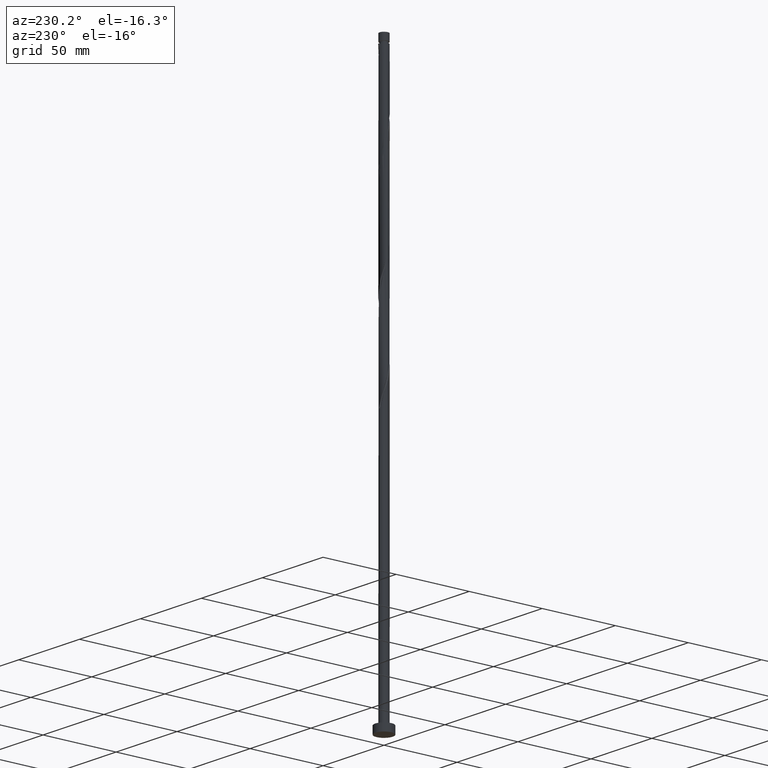
[diagram: clean part render]
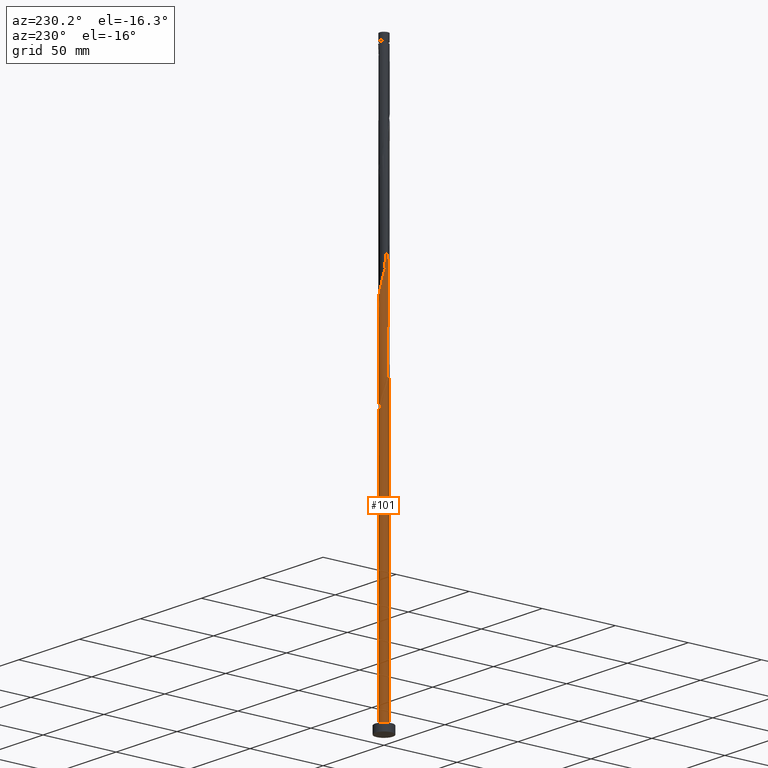
[diagram: same view with one face highlighted and labeled with its STEP entity id]
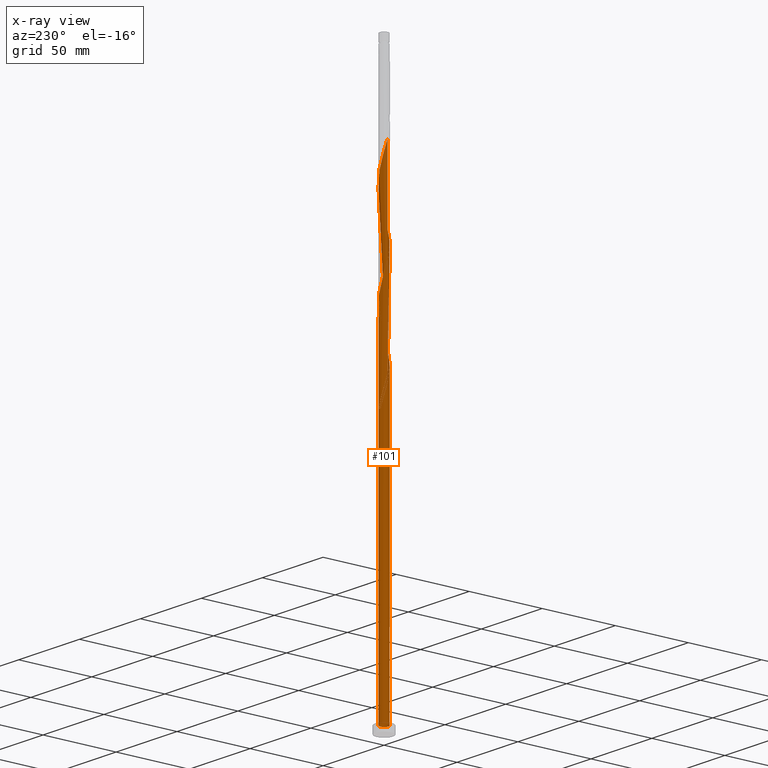
[diagram: x-ray of the same camera — body ghosted, the highlighted face saturated]
A machine part, auxiliary view. The second image highlights one B-rep face of the part: STEP entity #101.
The next image is the same camera in x-ray: the body ghosted, the highlighted face saturated — about 0% of this face is hidden behind the body in this view.
In plain terms, the highlighted cylindrical surface (bore or boss wall) has radius 3 mm, axis along (-0, -0, -1).
Its self-contained STEP definition (entity closure, byte-faithful):
#8 = CARTESIAN_POINT ( 'NONE',  ( 2.861491667719901599, 0.9010357570982416853, 296.0616467477937590 ) ) ;
#21 = CARTESIAN_POINT ( 'NONE',  ( -0.3426132633519636261, -2.997004880578672648, 208.2838689700159307 ) ) ;
#25 = EDGE_CURVE ( 'NONE', #1566, #482, #1890, .T. ) ;
#28 = CARTESIAN_POINT ( 'NONE',  ( -1.741185482790980732, 2.443004935426444924, 182.7283134144604162 ) ) ;
#41 = CARTESIAN_POINT ( 'NONE',  ( -2.611625341554442148, -1.476283534877588677, 198.2838689700160160 ) ) ;
#57 = CARTESIAN_POINT ( 'NONE',  ( -0.9582386936374924780, -2.860279830445437543, 206.0616467477937590 ) ) ;
#68 = CARTESIAN_POINT ( 'NONE',  ( -0.9059989139450645990, 2.877253563794374802, 246.0616467477937306 ) ) ;
#77 = CARTESIAN_POINT ( 'NONE',  ( 2.944774136347770632, -0.6540087066196521581, 290.5060911922382161 ) ) ;
#85 = CARTESIAN_POINT ( 'NONE',  ( 2.861491667719901599, 0.9010357570982416853, 229.3949800811271587 ) ) ;
#91 = CARTESIAN_POINT ( 'NONE',  ( -2.980586974261067557, 0.3407363920471041530, 258.2838689700159875 ) ) ;
#100 = CARTESIAN_POINT ( 'NONE',  ( -2.744447700168709758, 1.251970017003502411, 254.9505356366825595 ) ) ;
#101 = ADVANCED_FACE ( 'NONE', ( #450 ), #319, .T. ) ;
#107 = CARTESIAN_POINT ( 'NONE',  ( 0.3426132633519640147, 2.997004880578673092, 308.2838689700159875 ) ) ;
#114 = CARTESIAN_POINT ( 'NONE',  ( -1.245111594254569631, 2.729413328510879921, 184.9505356366826163 ) ) ;
#121 = CARTESIAN_POINT ( 'NONE',  ( -3.000000000000007994, 0.1709212123392705174, 325.5528344171101480 ) ) ;
#128 = CARTESIAN_POINT ( 'NONE',  ( -2.424175730171096887, 1.795214230025625302, 319.3949800811270734 ) ) ;
#134 = CARTESIAN_POINT ( 'NONE',  ( -2.944774136347770632, 0.6540087066196506038, 323.8394245255714168 ) ) ;
#143 = CARTESIAN_POINT ( 'NONE',  ( 0.000000000000000000, 0.000000000000000000, 178.2838689700159591 ) ) ;
#155 = CARTESIAN_POINT ( 'NONE',  ( 2.944774136347770632, -0.6540087066196521581, 223.8394245255715305 ) ) ;
#162 = CARTESIAN_POINT ( 'NONE',  ( -1.195207115623887928, 2.751632233922631787, 180.5060911922382445 ) ) ;
#167 = CARTESIAN_POINT ( 'NONE',  ( 1.195207115623887484, -2.751632233922632675, 213.8394245255715589 ) ) ;
#193 = CARTESIAN_POINT ( 'NONE',  ( -3.016399812174364481, 0.02746407747455833007, 259.3949800811271302 ) ) ;
#202 = ORIENTED_EDGE ( 'NONE', *, *, #1786, .T. ) ;
#206 = CARTESIAN_POINT ( 'NONE',  ( 0.02731362638454012601, 2.999875658392153088, 242.7283134144603878 ) ) ;
#217 = CARTESIAN_POINT ( 'NONE',  ( -1.741185482790980732, 2.443004935426444924, 249.3949800811271302 ) ) ;
#225 = DIRECTION ( 'NONE',  ( -0.000000000000000000, -0.000000000000000000, -1.000000000000000000 ) ) ;
#227 = CARTESIAN_POINT ( 'NONE',  ( -2.038775222402706255, -2.223244857174725198, 268.2838689700158739 ) ) ;
#238 = CARTESIAN_POINT ( 'NONE',  ( 1.997955648279249319, -2.259998966802001075, 283.8394245255715305 ) ) ;
#246 = CARTESIAN_POINT ( 'NONE',  ( -0.6504259784947257206, 2.928642355512050877, 182.7283134144603594 ) ) ;
#253 = CARTESIAN_POINT ( 'NONE',  ( -2.861491667719896270, 0.9010357570982424624, 193.8394245255715020 ) ) ;
#263 = CARTESIAN_POINT ( 'NONE',  ( -0.5969924622639748435, 2.940000000000004388, 311.6172023033493019 ) ) ;
#270 = DIRECTION ( 'NONE',  ( -0.000000000000000000, -0.000000000000000000, -1.000000000000000000 ) ) ;
#280 = CARTESIAN_POINT ( 'NONE',  ( -1.997955648279249763, 2.259998966801999742, 317.1727578589047880 ) ) ;
#304 = CARTESIAN_POINT ( 'NONE',  ( -2.211065689225174768, 2.027606598413812744, 184.9505356366826732 ) ) ;
#311 = CARTESIAN_POINT ( 'NONE',  ( 2.744447700168709758, -1.251970017003502855, 221.6172023033492451 ) ) ;
#319 = CYLINDRICAL_SURFACE ( 'NONE', #1416, 3.000000000000000444 ) ;
#321 = CARTESIAN_POINT ( 'NONE',  ( -0.02731362638453969927, -2.999875658392153088, 209.3949800811270734 ) ) ;
#340 = CARTESIAN_POINT ( 'NONE',  ( -2.038775222402706255, -2.223244857174725198, 201.6172023033492167 ) ) ;
#344 = VERTEX_POINT ( 'NONE', #937 ) ;
#346 = CARTESIAN_POINT ( 'NONE',  ( -2.956194341916742019, -0.6002808636434373568, 194.9505356366826163 ) ) ;
#357 = CARTESIAN_POINT ( 'NONE',  ( 2.424175730171095999, -1.795214230025625746, 286.0616467477937590 ) ) ;
#366 = CARTESIAN_POINT ( 'NONE',  ( -2.986297077045553916, -0.2864083930844391057, 260.5060911922382729 ) ) ;
#372 = CARTESIAN_POINT ( 'NONE',  ( -2.611625341554442148, -1.476283534877588677, 264.9505356366826163 ) ) ;
#380 = CARTESIAN_POINT ( 'NONE',  ( 0.5969924622639753986, -2.940000000000004388, 278.2838689700159875 ) ) ;
#388 = CARTESIAN_POINT ( 'NONE',  ( -2.956194341916742019, -0.6002808636434373568, 261.6172023033492451 ) ) ;
#406 = CARTESIAN_POINT ( 'NONE',  ( -2.456461689585819119, 1.750776419202128231, 190.5060911922382161 ) ) ;
#415 = CARTESIAN_POINT ( 'NONE',  ( -1.484415317302710591, 2.626010904050887440, 181.6172023033492735 ) ) ;
#420 = AXIS2_PLACEMENT_3D ( 'NONE', #596, #1858, #541 ) ;
#424 = ORIENTED_EDGE ( 'NONE', *, *, #1463, .F. ) ;
#428 = CARTESIAN_POINT ( 'NONE',  ( -2.944774136347770632, 0.6540087066196506038, 190.5060911922381877 ) ) ;
#436 = CARTESIAN_POINT ( 'NONE',  ( -2.211065689225174768, 2.027606598413812744, 318.2838689700159875 ) ) ;
#450 = FACE_OUTER_BOUND ( 'NONE', #639, .T. ) ;
#464 = CARTESIAN_POINT ( 'NONE',  ( -1.531984494871653890, -2.598546826576329849, 203.8394245255714736 ) ) ;
#474 = EDGE_CURVE ( 'NONE', #482, #604, #554, .T. ) ;
#482 = VERTEX_POINT ( 'NONE', #675 ) ;
#501 = ORIENTED_EDGE ( 'NONE', *, *, #474, .F. ) ;
#503 =( BOUNDED_CURVE ( )  B_SPLINE_CURVE ( 2, ( #1437, #823, #1271, #1143, #253, #1736, #1719, #406, #1007, #993, #1575, #842, #114, #1873, #246, #833, #697, #1297, #1886 ),
 .UNSPECIFIED., .F., .T. ) 
 B_SPLINE_CURVE_WITH_KNOTS ( ( 3, 2, 2, 2, 2, 2, 2, 2, 2, 3 ),
 ( 0.9295286012773112949, 0.9333333333333333481, 0.9416666666666666519, 0.9499999999999999556, 0.9583333333333333703, 0.9666666666666666741, 0.9749999999999999778, 0.9833333333333332815, 0.9916666666666666963, 1.000000000000000000 ),
 .UNSPECIFIED. ) 
 CURVE ( )  GEOMETRIC_REPRESENTATION_ITEM ( )  RATIONAL_B_SPLINE_CURVE ( ( 0.9066196499552428012, 0.9068171577856554144, 0.9090909090909544688, 0.9041108139712026315, 0.9090909090909544688, 0.9041108139712026315, 0.9090909090909544688, 0.9041108139712026315, 0.9090909090909544688, 0.9041108139712026315, 0.9090909090909544688, 0.9041108139712026315, 0.9090909090909544688, 0.9041108139712026315, 0.9090909090909544688, 0.9041108139712026315, 0.9090909090909544688, 0.9041108139712026315, 0.9090909090909544688 ) ) 
 REPRESENTATION_ITEM ( '' )  );
#504 = CARTESIAN_POINT ( 'NONE',  ( -0.5969924622639748435, 2.940000000000004388, 244.9505356366826732 ) ) ;
#513 = CARTESIAN_POINT ( 'NONE',  ( 0.3426132633519640147, 2.997004880578673092, 241.6172023033493019 ) ) ;
#522 = CARTESIAN_POINT ( 'NONE',  ( 0.000000000000000000, 0.000000000000000000, 384.1999999999999886 ) ) ;
#526 = CARTESIAN_POINT ( 'NONE',  ( -2.584311715169903767, 1.523592123514564189, 253.8394245255715020 ) ) ;
#534 = CARTESIAN_POINT ( 'NONE',  ( -0.02731362638453969927, -2.999875658392153088, 276.0616467477937022 ) ) ;
#539 = LINE ( 'NONE', #1569, #822 ) ;
#541 = DIRECTION ( 'NONE',  ( 1.000000000000000000, 0.000000000000000000, 0.000000000000000000 ) ) ;
#542 = VERTEX_POINT ( 'NONE', #1563 ) ;
#545 = CARTESIAN_POINT ( 'NONE',  ( 2.247618455994266462, 1.987010638188426048, 233.8394245255716157 ) ) ;
#554 = LINE ( 'NONE', #1880, #919 ) ;
#556 = CIRCLE ( 'NONE', #420, 3.000000000000000444 ) ;
#578 = CARTESIAN_POINT ( 'NONE',  ( -2.844610918258240861, 0.9529893618115767850, 322.7283134144603878 ) ) ;
#587 = CARTESIAN_POINT ( 'NONE',  ( 0.9582386936374928110, 2.860279830445437099, 306.0616467477937590 ) ) ;
#588 = CARTESIAN_POINT ( 'NONE',  ( -2.844610918258240861, 0.9529893618115767850, 189.3949800811271302 ) ) ;
#596 = CARTESIAN_POINT ( 'NONE',  ( 0.000000000000000000, 0.000000000000000000, 5.000000000000000000 ) ) ;
#604 = VERTEX_POINT ( 'NONE', #1128 ) ;
#615 = AXIS2_PLACEMENT_3D ( 'NONE', #634, #1526, #917 ) ;
#634 = CARTESIAN_POINT ( 'NONE',  ( 0.000000000000000000, 0.000000000000000000, 5.000000000000000000 ) ) ;
#639 = EDGE_LOOP ( 'NONE', ( #1388, #424, #658, #1754, #1191, #501, #1480, #202, #1102 ) ) ;
#642 = CARTESIAN_POINT ( 'NONE',  ( 0.5969924622639753986, -2.940000000000004388, 211.6172023033493304 ) ) ;
#644 = EDGE_CURVE ( 'NONE', #1239, #542, #503, .T. ) ;
#651 = CARTESIAN_POINT ( 'NONE',  ( -0.3426132633519636261, -2.997004880578672648, 274.9505356366825595 ) ) ;
#658 = ORIENTED_EDGE ( 'NONE', *, *, #474, .T. ) ;
#661 = CARTESIAN_POINT ( 'NONE',  ( 2.980586974261067557, -0.3407363920471044305, 291.6172023033493588 ) ) ;
#670 = CARTESIAN_POINT ( 'NONE',  ( 1.531984494871654556, 2.598546826576328517, 237.1727578589048164 ) ) ;
#675 = CARTESIAN_POINT ( 'NONE',  ( -3.000000000000004441, -3.976278501896848656E-15, 192.8250923931611567 ) ) ;
#678 = CARTESIAN_POINT ( 'NONE',  ( -2.944774136347770632, 0.6540087066196506038, 257.1727578589047880 ) ) ;
#689 = CARTESIAN_POINT ( 'NONE',  ( 2.211065689225174324, -2.027606598413812744, 284.9505356366827300 ) ) ;
#697 = CARTESIAN_POINT ( 'NONE',  ( -0.02731362638453790903, 2.999875658392149091, 180.5060911922381592 ) ) ;
#698 = CARTESIAN_POINT ( 'NONE',  ( -2.980586974261067557, 0.3407363920471041530, 324.9505356366826732 ) ) ;
#711 = CARTESIAN_POINT ( 'NONE',  ( -1.195207115623887928, 2.751632233922631787, 313.8394245255715873 ) ) ;
#731 = CARTESIAN_POINT ( 'NONE',  ( -3.000000000000005329, 0.1709212123392879756, 192.2195010837765210 ) ) ;
#738 = DIRECTION ( 'NONE',  ( 0.000000000000000000, -0.000000000000000000, -1.000000000000000000 ) ) ;
#750 = CARTESIAN_POINT ( 'NONE',  ( -1.245111594254573184, -2.729413328510884806, 204.9505356366826163 ) ) ;
#754 = EDGE_CURVE ( 'NONE', #604, #1375, #556, .T. ) ;
#771 = CARTESIAN_POINT ( 'NONE',  ( -2.424175730171096887, 1.795214230025625302, 186.0616467477936737 ) ) ;
#773 = CARTESIAN_POINT ( 'NONE',  ( -3.000000000000003997, -3.976278501896848656E-15, 192.8250923931611567 ) ) ;
#783 = CARTESIAN_POINT ( 'NONE',  ( -1.785379858637180517, -2.410895841875527523, 202.7283134144604730 ) ) ;
#791 = CARTESIAN_POINT ( 'NONE',  ( -1.245111594254573184, -2.729413328510884806, 271.6172023033492451 ) ) ;
#800 = CARTESIAN_POINT ( 'NONE',  ( -1.484415317302710591, 2.626010904050887440, 248.2838689700159307 ) ) ;
#809 = CARTESIAN_POINT ( 'NONE',  ( -2.424175730171096887, 1.795214230025625302, 252.7283134144603878 ) ) ;
#817 = CARTESIAN_POINT ( 'NONE',  ( -0.9582386936374924780, -2.860279830445437543, 272.7283134144603309 ) ) ;
#822 = VECTOR ( 'NONE', #1320, 1000.000000000000000 ) ;
#823 = CARTESIAN_POINT ( 'NONE',  ( -3.000000000000000444, 0.1435319978602440649, 196.5674303546401234 ) ) ;
#825 = CARTESIAN_POINT ( 'NONE',  ( 2.986297077045553916, 0.2864083930844375514, 227.1727578589048449 ) ) ;
#833 = CARTESIAN_POINT ( 'NONE',  ( -0.3426132633519624049, 2.997004880578669539, 181.6172023033493588 ) ) ;
#842 = CARTESIAN_POINT ( 'NONE',  ( -1.531984494871650337, 2.598546826576326296, 186.0616467477937022 ) ) ;
#844 = CARTESIAN_POINT ( 'NONE',  ( 2.038775222402706699, 2.223244857174724753, 301.6172023033493019 ) ) ;
#855 = CARTESIAN_POINT ( 'NONE',  ( -1.484415317302710591, 2.626010904050887440, 314.9505356366825595 ) ) ;
#899 = CARTESIAN_POINT ( 'NONE',  ( 2.844610918258240861, -0.9529893618115777842, 222.7283134144603878 ) ) ;
#909 = CARTESIAN_POINT ( 'NONE',  ( 1.741185482790979844, -2.443004935426445368, 216.0616467477937874 ) ) ;
#917 = DIRECTION ( 'NONE',  ( 1.000000000000000000, 0.000000000000000000, 0.000000000000000000 ) ) ;
#919 = VECTOR ( 'NONE', #270, 1000.000000000000000 ) ;
#920 = CIRCLE ( 'NONE', #957, 3.000000000000000444 ) ;
#937 = CARTESIAN_POINT ( 'NONE',  ( -3.000000000000004441, -1.719067773376456763E-15, 326.1584257264944995 ) ) ;
#949 = CARTESIAN_POINT ( 'NONE',  ( 2.844610918258240861, -0.9529893618115777842, 289.3949800811270734 ) ) ;
#957 = AXIS2_PLACEMENT_3D ( 'NONE', #143, #738, #1511 ) ;
#962 = CARTESIAN_POINT ( 'NONE',  ( -2.247618455994265130, -1.987010638188427381, 267.1727578589049017 ) ) ;
#964 = EDGE_CURVE ( 'NONE', #344, #1239, #539, .T. ) ;
#973 = CARTESIAN_POINT ( 'NONE',  ( -2.456461689585823560, -1.750776419202129786, 266.0616467477937590 ) ) ;
#983 = CARTESIAN_POINT ( 'NONE',  ( 1.195207115623887484, -2.751632233922632675, 280.5060911922381592 ) ) ;
#993 = CARTESIAN_POINT ( 'NONE',  ( -2.038775222402703147, 2.223244857174722089, 188.2838689700160160 ) ) ;
#995 = CARTESIAN_POINT ( 'NONE',  ( -2.844610918258240861, 0.9529893618115767850, 256.0616467477937590 ) ) ;
#1002 = CARTESIAN_POINT ( 'NONE',  ( -0.2879860105828838668, 3.002746436205631753, 310.5060911922381024 ) ) ;
#1007 = CARTESIAN_POINT ( 'NONE',  ( -2.247618455994259801, 1.987010638188424938, 189.3949800811270450 ) ) ;
#1013 = CARTESIAN_POINT ( 'NONE',  ( 2.456461689585824448, 1.750776419202128231, 299.3949800811270165 ) ) ;
#1025 = CARTESIAN_POINT ( 'NONE',  ( -2.980586974261067557, 0.3407363920471041530, 191.6172023033493304 ) ) ;
#1058 = CARTESIAN_POINT ( 'NONE',  ( -2.584311715169903767, 1.523592123514564189, 187.1727578589048449 ) ) ;
#1060 = CARTESIAN_POINT ( 'NONE',  ( 2.211065689225174324, -2.027606598413812744, 218.2838689700160160 ) ) ;
#1096 = CARTESIAN_POINT ( 'NONE',  ( 1.484415317302710591, -2.626010904050887884, 281.6172023033492451 ) ) ;
#1102 = ORIENTED_EDGE ( 'NONE', *, *, #644, .F. ) ;
#1105 = CARTESIAN_POINT ( 'NONE',  ( 2.744447700168709758, -1.251970017003502855, 288.2838689700159307 ) ) ;
#1112 = CARTESIAN_POINT ( 'NONE',  ( -2.861491667719901599, -0.9010357570982425734, 262.7283134144604446 ) ) ;
#1121 = CARTESIAN_POINT ( 'NONE',  ( 0.2879860105828854766, -3.002746436205631753, 277.1727578589049017 ) ) ;
#1128 = CARTESIAN_POINT ( 'NONE',  ( -3.000000000000000444, 0.000000000000000000, 5.000000000000000000 ) ) ;
#1130 = CARTESIAN_POINT ( 'NONE',  ( 1.245111594254573628, 2.729413328510884806, 238.2838689700159875 ) ) ;
#1143 = CARTESIAN_POINT ( 'NONE',  ( -2.956194341916737578, 0.6002808636434372458, 194.9505356366827016 ) ) ;
#1182 = CARTESIAN_POINT ( 'NONE',  ( 3.000000000000000444, 0.000000000000000000, 5.000000000000000000 ) ) ;
#1191 = ORIENTED_EDGE ( 'NONE', *, *, #1351, .T. ) ;
#1193 = CARTESIAN_POINT ( 'NONE',  ( -3.000000000000003553, -0.1435319978602587199, 193.3336409187252229 ) ) ;
#1214 = CARTESIAN_POINT ( 'NONE',  ( -2.456461689585823560, -1.750776419202129786, 199.3949800811270450 ) ) ;
#1221 = CARTESIAN_POINT ( 'NONE',  ( 1.997955648279249319, -2.259998966802001075, 217.1727578589047880 ) ) ;
#1231 = CARTESIAN_POINT ( 'NONE',  ( 0.9059989139450634887, -2.877253563794376134, 279.3949800811269597 ) ) ;
#1239 = VERTEX_POINT ( 'NONE', #1427 ) ;
#1242 = CARTESIAN_POINT ( 'NONE',  ( 3.016399812174364481, -0.02746407747455939172, 292.7283134144603878 ) ) ;
#1252 = CARTESIAN_POINT ( 'NONE',  ( -2.211065689225174768, 2.027606598413812744, 251.6172023033493304 ) ) ;
#1262 = CARTESIAN_POINT ( 'NONE',  ( -1.531984494871653890, -2.598546826576329849, 270.5060911922381024 ) ) ;
#1271 = CARTESIAN_POINT ( 'NONE',  ( -2.986297077045548143, 0.2864083930844402714, 196.0616467477937590 ) ) ;
#1273 = CARTESIAN_POINT ( 'NONE',  ( 2.956194341916742019, 0.6002808636434369127, 228.2838689700159591 ) ) ;
#1278 = CARTESIAN_POINT ( 'NONE',  ( -0.9059989139450645990, 2.877253563794374802, 312.7283134144603878 ) ) ;
#1289 = CARTESIAN_POINT ( 'NONE',  ( 1.531984494871654556, 2.598546826576328517, 303.8394245255714168 ) ) ;
#1297 = CARTESIAN_POINT ( 'NONE',  ( 0.2879860105828864758, 3.002746436205626868, 179.3949800811270450 ) ) ;
#1298 = CARTESIAN_POINT ( 'NONE',  ( 2.611625341554442148, 1.476283534877588677, 298.2838689700159875 ) ) ;
#1306 = CARTESIAN_POINT ( 'NONE',  ( 2.766788993523062068, 1.201790650553046236, 297.1727578589047312 ) ) ;
#1312 = CARTESIAN_POINT ( 'NONE',  ( -0.9059989139450645990, 2.877253563794374802, 179.3949800811270734 ) ) ;
#1320 = DIRECTION ( 'NONE',  ( -0.000000000000000000, -0.000000000000000000, -1.000000000000000000 ) ) ;
#1328 = CARTESIAN_POINT ( 'NONE',  ( -0.6504259784947283851, -2.928642355512055317, 207.1727578589049017 ) ) ;
#1347 = CARTESIAN_POINT ( 'NONE',  ( 2.584311715169903323, -1.523592123514564856, 220.5060911922382161 ) ) ;
#1351 = EDGE_CURVE ( 'NONE', #1375, #604, #1445, .T. ) ;
#1357 = CARTESIAN_POINT ( 'NONE',  ( -2.861491667719901599, -0.9010357570982425734, 196.0616467477937306 ) ) ;
#1375 = VERTEX_POINT ( 'NONE', #1182 ) ;
#1378 = CARTESIAN_POINT ( 'NONE',  ( 0.9582386936374928110, 2.860279830445437099, 239.3949800811270165 ) ) ;
#1388 = ORIENTED_EDGE ( 'NONE', *, *, #964, .F. ) ;
#1391 = CARTESIAN_POINT ( 'NONE',  ( 2.584311715169903323, -1.523592123514564856, 287.1727578589048449 ) ) ;
#1402 = CARTESIAN_POINT ( 'NONE',  ( -2.766788993523060292, -1.201790650553047568, 263.8394245255714736 ) ) ;
#1411 = CARTESIAN_POINT ( 'NONE',  ( 2.611625341554442148, 1.476283534877588677, 231.6172023033492735 ) ) ;
#1416 = AXIS2_PLACEMENT_3D ( 'NONE', #522, #225, #1841 ) ;
#1417 =( BOUNDED_CURVE ( )  B_SPLINE_CURVE ( 2, ( #773, #1193, #1494, #346, #1357, #1533, #41, #1214, #1810, #340, #783, #464, #750, #57, #1328, #21, #321, #1780, #642, #1790, #167, #1664, #909, #1221, #1060, #1632, #1347, #311, #899, #155, #1542, #1835, #825, #1273, #85, #1705, #1411, #1423, #545, #1853, #1843, #670, #1130, #1378, #1860, #513, #206, #1721, #504, #68, #1557, #800, #217, #1827, #1252, #809, #526, #100, #995, #678, #91, #193, #366, #388, #1112, #1402, #372, #973, #962, #227, #1713, #1262, #791, #817, #1684, #651, #534, #1121, #380, #1231, #983, #1096, #1565, #238, #689, #357, #1391, #1105, #949, #77, #661, #1242, #1692, #1550, #8, #1306, #1298, #1013, #1431, #844, #1591, #1289, #1582, #587, #1874, #107, #1598, #1002, #263, #1278, #711, #855, #1448, #280, #436, #128, #1456, #1895, #578, #134, #698, #121, #1888 ),
 .UNSPECIFIED., .F., .T. ) 
 B_SPLINE_CURVE_WITH_KNOTS ( ( 3, 2, 2, 2, 2, 2, 2, 2, 2, 2, 2, 2, 2, 2, 2, 2, 2, 2, 2, 2, 2, 2, 2, 2, 2, 2, 2, 2, 2, 2, 2, 2, 2, 2, 2, 2, 2, 2, 2, 2, 2, 2, 2, 2, 2, 2, 2, 2, 2, 2, 2, 2, 2, 2, 2, 2, 2, 2, 2, 2, 2, 3 ),
 ( 0.05452860127731171819, 0.05833333333333334814, 0.06666666666666665186, 0.07499999999999995559, 0.08333333333333337034, 0.09166666666666667407, 0.09999999999999997780, 0.1083333333333332815, 0.1166666666666666963, 0.1250000000000000000, 0.1333333333333333037, 0.1416666666666667185, 0.1500000000000000222, 0.1583333333333333259, 0.1666666666666666297, 0.1750000000000000444, 0.1833333333333333481, 0.1916666666666666519, 0.1999999999999999556, 0.2083333333333333703, 0.2166666666666666741, 0.2249999999999999778, 0.2333333333333332815, 0.2416666666666666963, 0.2500000000000000000, 0.2583333333333333037, 0.2666666666666667185, 0.2750000000000000222, 0.2833333333333333259, 0.2916666666666666297, 0.3000000000000000444, 0.3083333333333333481, 0.3166666666666666519, 0.3249999999999999556, 0.3333333333333333703, 0.3416666666666666741, 0.3499999999999999778, 0.3583333333333332815, 0.3666666666666666963, 0.3750000000000000000, 0.3833333333333333037, 0.3916666666666667185, 0.4000000000000000222, 0.4083333333333333259, 0.4166666666666666297, 0.4250000000000000444, 0.4333333333333333481, 0.4416666666666666519, 0.4499999999999999556, 0.4583333333333333703, 0.4666666666666666741, 0.4749999999999999778, 0.4833333333333332815, 0.4916666666666666963, 0.5000000000000000000, 0.5083333333333333037, 0.5166666666666666075, 0.5250000000000000222, 0.5333333333333333259, 0.5416666666666667407, 0.5500000000000000444, 0.5545286012773121831 ),
 .UNSPECIFIED. ) 
 CURVE ( )  GEOMETRIC_REPRESENTATION_ITEM ( )  RATIONAL_B_SPLINE_CURVE ( ( 0.9066196499552492405, 0.9068171577856620758, 0.9090909090909607970, 0.9041108139712090708, 0.9090909090909607970, 0.9041108139712090708, 0.9090909090909607970, 0.9041108139712090708, 0.9090909090909607970, 0.9041108139712090708, 0.9090909090909607970, 0.9041108139712090708, 0.9090909090909607970, 0.9041108139712090708, 0.9090909090909607970, 0.9041108139712090708, 0.9090909090909607970, 0.9041108139712090708, 0.9090909090909607970, 0.9041108139712090708, 0.9090909090909607970, 0.9041108139712090708, 0.9090909090909607970, 0.9041108139712090708, 0.9090909090909607970, 0.9041108139712090708, 0.9090909090909607970, 0.9041108139712090708, 0.9090909090909607970, 0.9041108139712090708, 0.9090909090909607970, 0.9041108139712090708, 0.9090909090909607970, 0.9041108139712090708, 0.9090909090909607970, 0.9041108139712090708, 0.9090909090909607970, 0.9041108139712090708, 0.9090909090909607970, 0.9041108139712090708, 0.9090909090909607970, 0.9041108139712090708, 0.9090909090909607970, 0.9041108139712090708, 0.9090909090909607970, 0.9041108139712090708, 0.9090909090909607970, 0.9041108139712090708, 0.9090909090909607970, 0.9041108139712090708, 0.9090909090909607970, 0.9041108139712090708, 0.9090909090909607970, 0.9041108139712090708, 0.9090909090909607970, 0.9041108139712090708, 0.9090909090909607970, 0.9041108139712090708, 0.9090909090909607970, 0.9041108139712090708, 0.9090909090909607970, 0.9041108139712090708, 0.9090909090909607970, 0.9041108139712090708, 0.9090909090909607970, 0.9041108139712090708, 0.9090909090909607970, 0.9041108139712090708, 0.9090909090909607970, 0.9041108139712090708, 0.9090909090909607970, 0.9041108139712090708, 0.9090909090909607970, 0.9041108139712090708, 0.9090909090909607970, 0.9041108139712090708, 0.9090909090909607970, 0.9041108139712090708, 0.9090909090909607970, 0.9041108139712090708, 0.9090909090909607970, 0.9041108139712090708, 0.9090909090909607970, 0.9041108139712090708, 0.9090909090909607970, 0.9041108139712090708, 0.9090909090909607970, 0.9041108139712090708, 0.9090909090909607970, 0.9041108139712090708, 0.9090909090909607970, 0.9041108139712090708, 0.9090909090909607970, 0.9041108139712090708, 0.9090909090909607970, 0.9041108139712090708, 0.9090909090909607970, 0.9041108139712090708, 0.9090909090909607970, 0.9041108139712090708, 0.9090909090909607970, 0.9041108139712090708, 0.9090909090909607970, 0.9041108139712090708, 0.9090909090909607970, 0.9041108139712090708, 0.9090909090909607970, 0.9041108139712090708, 0.9090909090909607970, 0.9041108139712090708, 0.9090909090909607970, 0.9041108139712090708, 0.9090909090909607970, 0.9041108139712090708, 0.9090909090909607970, 0.9041108139712090708, 0.9090909090909607970, 0.9041108139712090708, 0.9090909090909607970, 0.9041108139712090708, 0.9090909090909607970, 0.9063845652765074590, 0.9066196499552491295 ) ) 
 REPRESENTATION_ITEM ( '' )  );
#1423 = CARTESIAN_POINT ( 'NONE',  ( 2.456461689585824448, 1.750776419202128231, 232.7283134144603878 ) ) ;
#1427 = CARTESIAN_POINT ( 'NONE',  ( -3.000000000000000000, -3.019579914974319488E-15, 197.0759788802041612 ) ) ;
#1431 = CARTESIAN_POINT ( 'NONE',  ( 2.247618455994266462, 1.987010638188426048, 300.5060911922382729 ) ) ;
#1437 = CARTESIAN_POINT ( 'NONE',  ( -3.000000000000000444, -3.019579914974319488E-15, 197.0759788802041328 ) ) ;
#1445 = CIRCLE ( 'NONE', #615, 3.000000000000000444 ) ;
#1448 = CARTESIAN_POINT ( 'NONE',  ( -1.741185482790980732, 2.443004935426444924, 316.0616467477938727 ) ) ;
#1456 = CARTESIAN_POINT ( 'NONE',  ( -2.584311715169903767, 1.523592123514564189, 320.5060911922381024 ) ) ;
#1463 = EDGE_CURVE ( 'NONE', #482, #344, #1417, .T. ) ;
#1465 = CARTESIAN_POINT ( 'NONE',  ( -0.5969924622639748435, 2.940000000000004388, 178.2838689700159591 ) ) ;
#1480 = ORIENTED_EDGE ( 'NONE', *, *, #25, .F. ) ;
#1494 = CARTESIAN_POINT ( 'NONE',  ( -2.986297077045553916, -0.2864083930844391057, 193.8394245255715589 ) ) ;
#1511 = DIRECTION ( 'NONE',  ( -1.000000000000000000, 0.000000000000000000, 0.000000000000000000 ) ) ;
#1526 = DIRECTION ( 'NONE',  ( 0.000000000000000000, 0.000000000000000000, 1.000000000000000000 ) ) ;
#1533 = CARTESIAN_POINT ( 'NONE',  ( -2.766788993523060292, -1.201790650553047568, 197.1727578589048449 ) ) ;
#1542 = CARTESIAN_POINT ( 'NONE',  ( 2.980586974261067557, -0.3407363920471044305, 224.9505356366826732 ) ) ;
#1550 = CARTESIAN_POINT ( 'NONE',  ( 2.956194341916742019, 0.6002808636434369127, 294.9505356366826163 ) ) ;
#1557 = CARTESIAN_POINT ( 'NONE',  ( -1.195207115623887928, 2.751632233922631787, 247.1727578589048449 ) ) ;
#1563 = CARTESIAN_POINT ( 'NONE',  ( 0.5969924622639758427, 2.939999999999999947, 178.2838689700159591 ) ) ;
#1565 = CARTESIAN_POINT ( 'NONE',  ( 1.741185482790979844, -2.443004935426445368, 282.7283134144603878 ) ) ;
#1566 = VERTEX_POINT ( 'NONE', #1465 ) ;
#1569 = CARTESIAN_POINT ( 'NONE',  ( -3.000000000000000444, 0.000000000000000000, 384.1999999999999886 ) ) ;
#1575 = CARTESIAN_POINT ( 'NONE',  ( -1.785379858637176520, 2.410895841875523971, 187.1727578589048449 ) ) ;
#1582 = CARTESIAN_POINT ( 'NONE',  ( 1.245111594254573628, 2.729413328510884806, 304.9505356366826163 ) ) ;
#1591 = CARTESIAN_POINT ( 'NONE',  ( 1.785379858637181405, 2.410895841875527523, 302.7283134144603878 ) ) ;
#1598 = CARTESIAN_POINT ( 'NONE',  ( 0.02731362638454012601, 2.999875658392153088, 309.3949800811271302 ) ) ;
#1626 = CARTESIAN_POINT ( 'NONE',  ( -1.997955648279249763, 2.259998966801999742, 183.8394245255714736 ) ) ;
#1632 = CARTESIAN_POINT ( 'NONE',  ( 2.424175730171095999, -1.795214230025625746, 219.3949800811270165 ) ) ;
#1641 = CARTESIAN_POINT ( 'NONE',  ( -3.000000000000003997, -3.976278501896848656E-15, 192.8250923931611567 ) ) ;
#1652 = CARTESIAN_POINT ( 'NONE',  ( -2.744447700168709758, 1.251970017003502411, 188.2838689700160160 ) ) ;
#1664 = CARTESIAN_POINT ( 'NONE',  ( 1.484415317302710591, -2.626010904050887884, 214.9505356366826163 ) ) ;
#1684 = CARTESIAN_POINT ( 'NONE',  ( -0.6504259784947283851, -2.928642355512055317, 273.8394245255715305 ) ) ;
#1692 = CARTESIAN_POINT ( 'NONE',  ( 2.986297077045553916, 0.2864083930844375514, 293.8394245255715873 ) ) ;
#1705 = CARTESIAN_POINT ( 'NONE',  ( 2.766788993523062068, 1.201790650553046236, 230.5060911922381308 ) ) ;
#1713 = CARTESIAN_POINT ( 'NONE',  ( -1.785379858637180517, -2.410895841875527523, 269.3949800811271871 ) ) ;
#1719 = CARTESIAN_POINT ( 'NONE',  ( -2.611625341554437263, 1.476283534877587122, 191.6172023033493304 ) ) ;
#1721 = CARTESIAN_POINT ( 'NONE',  ( -0.2879860105828838668, 3.002746436205631753, 243.8394245255715020 ) ) ;
#1736 = CARTESIAN_POINT ( 'NONE',  ( -2.766788993523056295, 1.201790650553047346, 192.7283134144603594 ) ) ;
#1754 = ORIENTED_EDGE ( 'NONE', *, *, #754, .T. ) ;
#1764 = CARTESIAN_POINT ( 'NONE',  ( -0.5969924622639748435, 2.940000000000004388, 178.2838689700159591 ) ) ;
#1780 = CARTESIAN_POINT ( 'NONE',  ( 0.2879860105828854766, -3.002746436205631753, 210.5060911922381592 ) ) ;
#1786 = EDGE_CURVE ( 'NONE', #1566, #542, #920, .T. ) ;
#1790 = CARTESIAN_POINT ( 'NONE',  ( 0.9059989139450634887, -2.877253563794376134, 212.7283134144603594 ) ) ;
#1810 = CARTESIAN_POINT ( 'NONE',  ( -2.247618455994265130, -1.987010638188427381, 200.5060911922382161 ) ) ;
#1827 = CARTESIAN_POINT ( 'NONE',  ( -1.997955648279249763, 2.259998966801999742, 250.5060911922381592 ) ) ;
#1835 = CARTESIAN_POINT ( 'NONE',  ( 3.016399812174364481, -0.02746407747455939172, 226.0616467477937306 ) ) ;
#1841 = DIRECTION ( 'NONE',  ( -1.000000000000000000, 0.000000000000000000, 0.000000000000000000 ) ) ;
#1843 = CARTESIAN_POINT ( 'NONE',  ( 1.785379858637181405, 2.410895841875527523, 236.0616467477937590 ) ) ;
#1853 = CARTESIAN_POINT ( 'NONE',  ( 2.038775222402706699, 2.223244857174724753, 234.9505356366825595 ) ) ;
#1858 = DIRECTION ( 'NONE',  ( 0.000000000000000000, 0.000000000000000000, 1.000000000000000000 ) ) ;
#1860 = CARTESIAN_POINT ( 'NONE',  ( 0.6504259784947298284, 2.928642355512054873, 240.5060911922382161 ) ) ;
#1873 = CARTESIAN_POINT ( 'NONE',  ( -0.9582386936374894804, 2.860279830445434435, 183.8394245255715305 ) ) ;
#1874 = CARTESIAN_POINT ( 'NONE',  ( 0.6504259784947298284, 2.928642355512054873, 307.1727578589049017 ) ) ;
#1880 = CARTESIAN_POINT ( 'NONE',  ( -3.000000000000000444, 0.000000000000000000, 384.1999999999999886 ) ) ;
#1886 = CARTESIAN_POINT ( 'NONE',  ( 0.5969924622639758427, 2.939999999999999947, 178.2838689700159591 ) ) ;
#1888 = CARTESIAN_POINT ( 'NONE',  ( -3.000000000000004441, -1.719067773376456763E-15, 326.1584257264944995 ) ) ;
#1890 =( BOUNDED_CURVE ( )  B_SPLINE_CURVE ( 2, ( #1764, #1312, #162, #415, #28, #1626, #304, #771, #1058, #1652, #588, #428, #1025, #731, #1641 ),
 .UNSPECIFIED., .F., .F. ) 
 B_SPLINE_CURVE_WITH_KNOTS ( ( 3, 2, 2, 2, 2, 2, 2, 3 ),
 ( 0.000000000000000000, 0.008333333333333303727, 0.01666666666666671848, 0.02500000000000002220, 0.03333333333333332593, 0.04166666666666662966, 0.05000000000000004441, 0.05452860127731171819 ),
 .UNSPECIFIED. ) 
 CURVE ( )  GEOMETRIC_REPRESENTATION_ITEM ( )  RATIONAL_B_SPLINE_CURVE ( ( 0.9090909090909607970, 0.9041108139712090708, 0.9090909090909607970, 0.9041108139712090708, 0.9090909090909607970, 0.9041108139712090708, 0.9090909090909607970, 0.9041108139712090708, 0.9090909090909607970, 0.9041108139712090708, 0.9090909090909607970, 0.9041108139712090708, 0.9090909090909607970, 0.9063845652765079031, 0.9066196499552492405 ) ) 
 REPRESENTATION_ITEM ( '' )  );
#1895 = CARTESIAN_POINT ( 'NONE',  ( -2.744447700168709758, 1.251970017003502411, 321.6172023033493019 ) ) ;